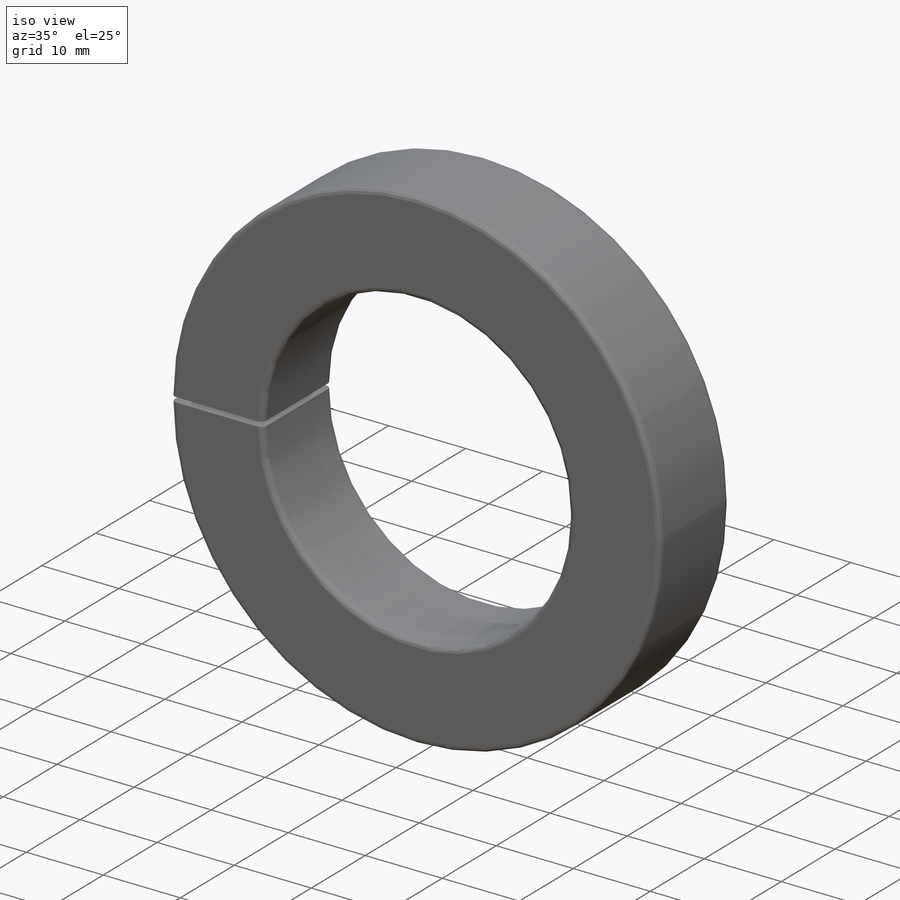
[diagram: iso view]
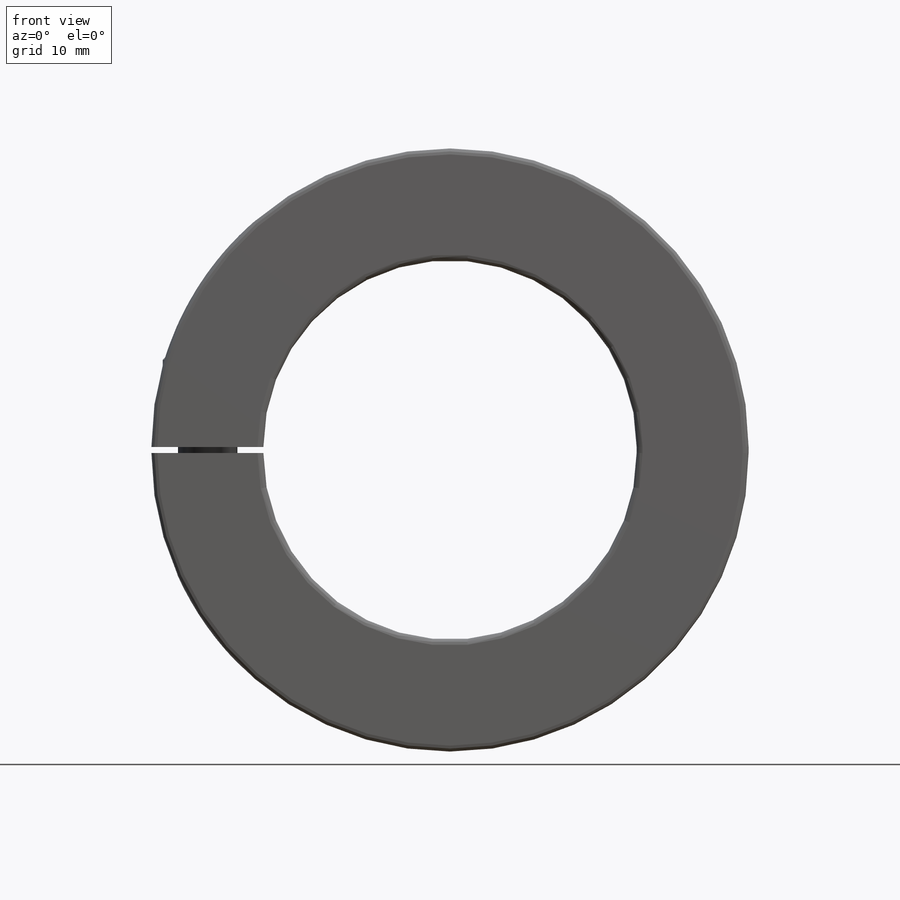
[diagram: front view]
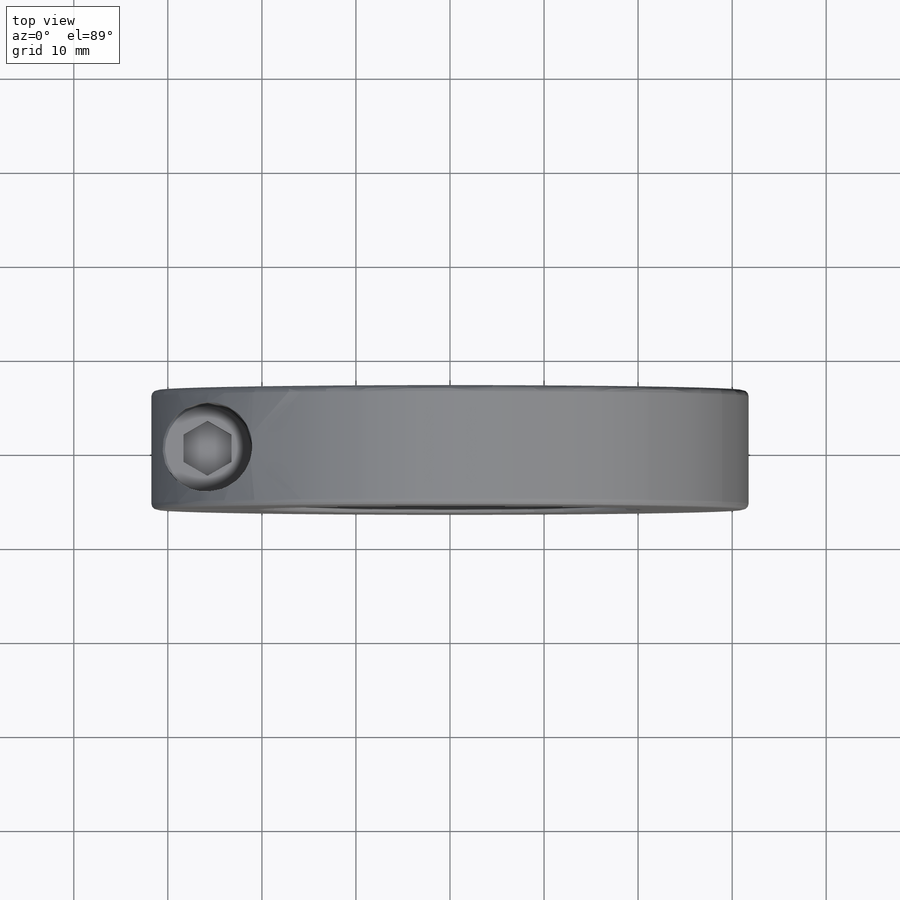
[diagram: top view]
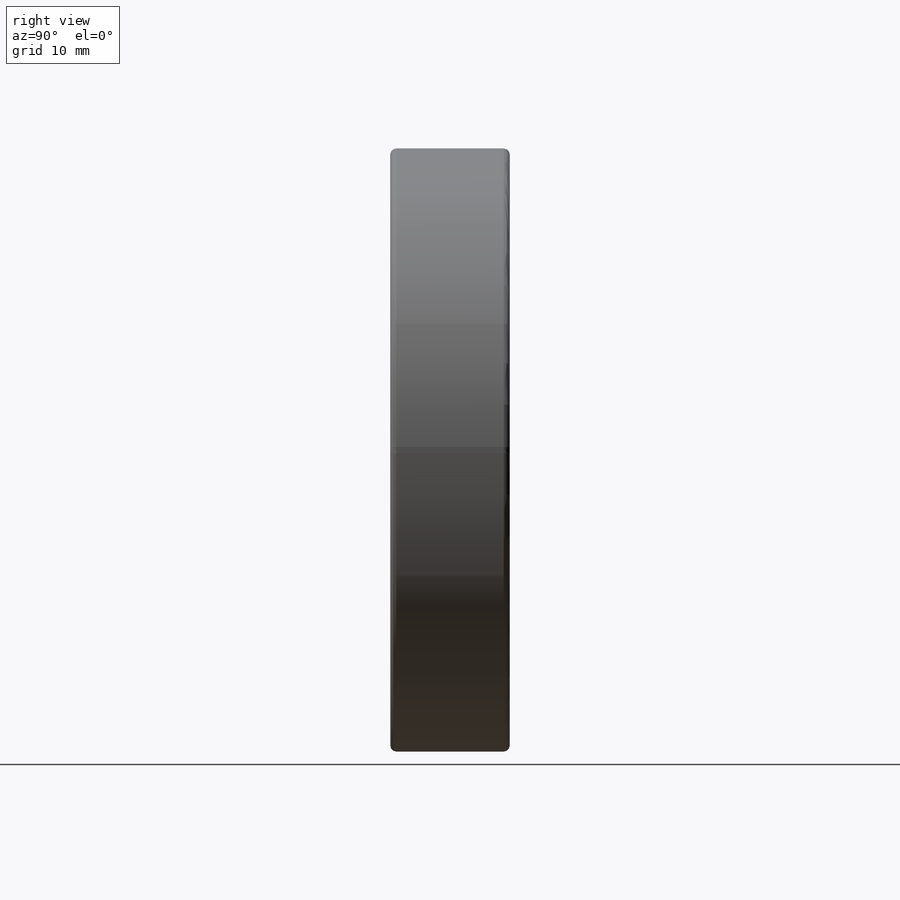
[diagram: right view]
SOLIDWORKS PART (.sldprt)
format: sldprt  version: not decoded by parser v0  size: 297,984 bytes
history: native  units: mm
features: sketch x4, material x1, extrude x1, cut_revolve x1, revolve x1, cut_extrude x1, fillet x1, chamfer x1 (+12 scaffold rows collapsed)
feature tree (23):
  scaffold x12  (default folders/planes/origin — collapsed)
  material  "Material <not specified>"
  sketch  "Sketch1"  dims[c1.Bore Dia=39.6875mm c1.OD=63.5mm c1.Separation=1.143mm c2.Separation=0.635mm]
  extrude  "Extrude1"  Depth=12.7mm Width=12.7mm
  sketch  "Sketch4"  dims[c1.Set Screw Dia=9.525mm c1.D1=9.525mm c1.D2=15.875mm c2.D1=6.35mm c2.D2=60.325mm c2.D3=1.27mm c3.D2=~11.90625mm c3.D4=9.525mm c3.D3=3.175mm c3.Screw Dia=6.35mm c3.D5=2.54mm]
  cut_revolve  "Cut-Revolve1"  Angle=360deg
  sketch  "Sketch6"  dims[c1.Head Ht=~17.30375mm c1.D2=2.54mm c1.Screw Lg=19.05mm c2.Head Ht=6.35mm]
  revolve  "Revolve1"  Angle=360deg
  sketch  "Sketch7"  dims[D1=5.08mm]
  cut_extrude  "Cut-Extrude2"  Depth=3.175mm
  fillet  "Fillet1"  Radius=0.635mm
  chamfer  "Chamfer2"  Distance=0.254mm Angle=45deg
decode coverage: 10 of 10 modeling features carry decoded parameters
note: ~ marks probable driven/reference dimensions
note: suppression state not decoded; provenance and decode notes live in map.json
